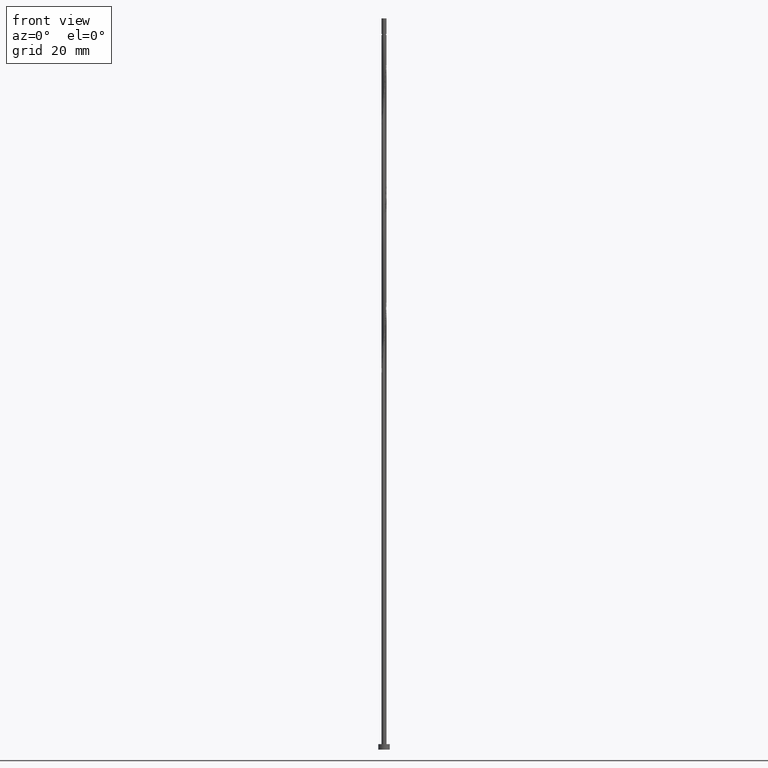
[diagram: clean part render]
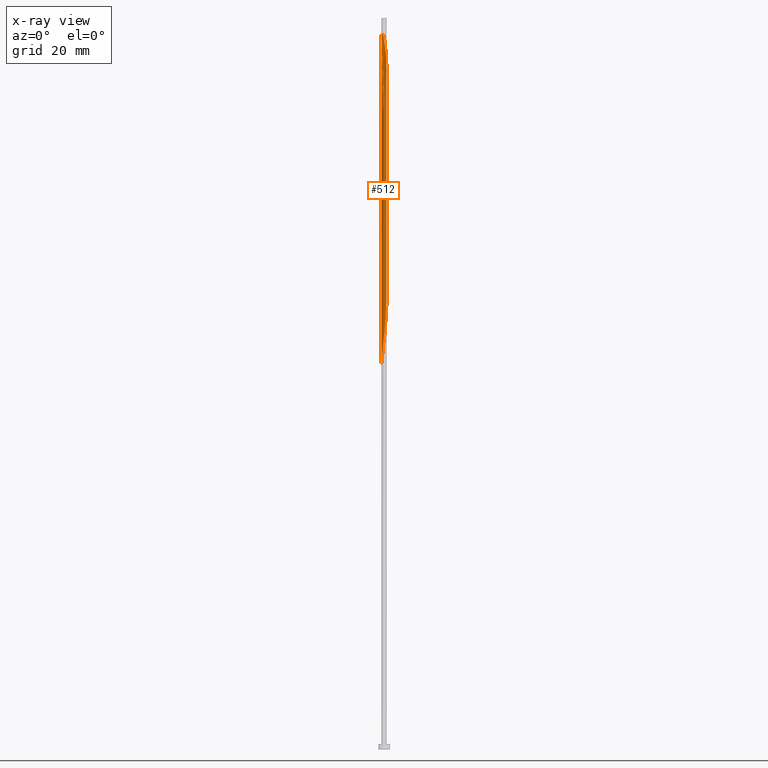
[diagram: x-ray — body ghosted, one internal face saturated and labeled with its STEP entity id]
A machine part, front view, then the same camera in x-ray: the body is ghosted and one INTERNAL B-rep face — a face not visible from any outside direction — is saturated and labeled: STEP entity #512.
In plain terms, the highlighted cylindrical surface (bore or boss wall) has radius 0.55 mm, axis along (-0, -0, -1).
Its self-contained STEP definition (entity closure, byte-faithful):
#14 = LINE ( 'NONE', #472, #1499 ) ;
#16 = CARTESIAN_POINT ( 'NONE',  ( -0.1256294538510286662, 0.5412675679983837140, 104.8434024322723417 ) ) ;
#27 = CARTESIAN_POINT ( 'NONE',  ( 0.3834794372333126811, -0.3942632638469158457, 145.4494630383329650 ) ) ;
#35 = CARTESIAN_POINT ( 'NONE',  ( 0.5500000000000003775, 0.06299091006181967156, 124.3606350463627592 ) ) ;
#45 = CARTESIAN_POINT ( 'NONE',  ( 0.03195211761843825410, -0.5547363355878992541, 142.4191600080298770 ) ) ;
#51 = CARTESIAN_POINT ( 'NONE',  ( 0.3834794372333126256, 0.3942632638469160122, 127.2676448565147780 ) ) ;
#58 = CARTESIAN_POINT ( 'NONE',  ( 0.1094486180817289128, -0.5390000000000008118, 143.0252206140905855 ) ) ;
#63 = CARTESIAN_POINT ( 'NONE',  ( 0.4401659366941122475, 0.3391272445793576673, 126.6615842504541831 ) ) ;
#74 = CARTESIAN_POINT ( 'NONE',  ( 0.3267929377725130036, 0.4493992831144738020, 101.2070387959087157 ) ) ;
#75 = CARTESIAN_POINT ( 'NONE',  ( -0.4913325304805729044, 0.2595104705659283528, 135.1464327353026249 ) ) ;
#78 = CARTESIAN_POINT ( 'NONE',  ( 0.000000000000000000, 0.000000000000000000, 156.3585539474238715 ) ) ;
#89 = CARTESIAN_POINT ( 'NONE',  ( -0.5357582445995460185, -0.1243507271535392728, 111.5100690989390415 ) ) ;
#96 = CARTESIAN_POINT ( 'NONE',  ( 0.4401659366941122475, 0.3391272445793576673, 99.99491758378749751 ) ) ;
#104 = EDGE_CURVE ( 'NONE', #1370, #420, #14, .T. ) ;
#105 = CARTESIAN_POINT ( 'NONE',  ( 0.5178793091923759029, 0.2013811335558033377, 98.78279637166627936 ) ) ;
#106 = CARTESIAN_POINT ( 'NONE',  ( -0.3983175623046791292, 0.3874228431590614474, 133.9343115231814068 ) ) ;
#116 = CARTESIAN_POINT ( 'NONE',  ( -0.5445426591040019026, 0.1105741030157384452, 109.6918872807572143 ) ) ;
#128 = CARTESIAN_POINT ( 'NONE',  ( 0.3983175623046792957, -0.3874228431590612809, 120.6009781898480924 ) ) ;
#132 = LINE ( 'NONE', #224, #1389 ) ;
#146 = CARTESIAN_POINT ( 'NONE',  ( -0.2568690281587663882, -0.4863314737632881135, 88.47976606863602456 ) ) ;
#147 = CARTESIAN_POINT ( 'NONE',  ( -0.1256294538510286940, -0.5412675679983839361, 141.2070387959088009 ) ) ;
#170 = CARTESIAN_POINT ( 'NONE',  ( 0.2730332741166158761, 0.4839485210918138547, 153.3282509171208403 ) ) ;
#176 = CARTESIAN_POINT ( 'NONE',  ( -0.3356754182106476136, -0.4356856821254375678, 139.3888569777269311 ) ) ;
#200 = CARTESIAN_POINT ( 'NONE',  ( -0.1993313639838222295, 0.5126080445450987844, 132.1161297049996506 ) ) ;
#203 = CARTESIAN_POINT ( 'NONE',  ( -0.3834794372333127366, -0.3942632638469158457, 113.9343115231814636 ) ) ;
#208 = CARTESIAN_POINT ( 'NONE',  ( -0.5499999999999929390, 0.000000000000000000, 156.3585539474238715 ) ) ;
#220 = CARTESIAN_POINT ( 'NONE',  ( -0.2568690281587663882, -0.4863314737632881135, 115.1464327353026675 ) ) ;
#224 = CARTESIAN_POINT ( 'NONE',  ( -0.5500000000000000444, 0.000000000000000000, 160.0000000000000284 ) ) ;
#236 = CARTESIAN_POINT ( 'NONE',  ( -0.5500000000000010436, -2.374395286679931804E-16, 135.5090994681229972 ) ) ;
#263 =( BOUNDED_CURVE ( )  B_SPLINE_CURVE ( 2, ( #1400, #1378, #1385, #308, #319, #1045, #1520, #128, #296, #777, #999, #548, #1510, #558, #545, #1413, #220, #797, #203, #696, #1533, #1165, #89, #554, #452, #116, #1452, #619, #583, #1070, #1542, #1079, #360, #16, #845, #804, #898, #687, #1289, #74, #905, #96, #812, #105, #572, #303, #1151, #1273, #426, #310, #1498, #419, #1279, #552, #664, #1159, #1504, #1040, #914, #1395, #146, #1318, #1029, #270, #746, #624, #983, #387, #1300 ),
 .UNSPECIFIED., .F., .T. ) 
 B_SPLINE_CURVE_WITH_KNOTS ( ( 3, 2, 2, 2, 2, 2, 2, 2, 2, 2, 2, 2, 2, 2, 2, 2, 2, 2, 2, 2, 2, 2, 2, 2, 2, 2, 2, 2, 2, 2, 2, 2, 2, 2, 3 ),
 ( 0.5545252162417508845, 0.5568181818181817677, 0.5681818181818182323, 0.5795454545454545858, 0.5909090909090909394, 0.6022727272727272929, 0.6136363636363636465, 0.6250000000000000000, 0.6363636363636363535, 0.6477272727272727071, 0.6590909090909090606, 0.6704545454545454142, 0.6818181818181817677, 0.6931818181818182323, 0.7045454545454545858, 0.7159090909090909394, 0.7272727272727272929, 0.7386363636363636465, 0.7500000000000000000, 0.7613636363636363535, 0.7727272727272727071, 0.7840909090909090606, 0.7954545454545454142, 0.8068181818181817677, 0.8181818181818182323, 0.8295454545454545858, 0.8409090909090909394, 0.8522727272727272929, 0.8636363636363636465, 0.8750000000000000000, 0.8863636363636363535, 0.8977272727272727071, 0.9090909090909090606, 0.9204545454545454142, 0.9295252162417512176 ),
 .UNSPECIFIED. ) 
 CURVE ( )  GEOMETRIC_REPRESENTATION_ITEM ( )  RATIONAL_B_SPLINE_CURVE ( ( 0.9061101570136069761, 0.9072237824201893064, 0.9090909090909671253, 0.8998376744372691416, 0.9090909090909671253, 0.8998376744372691416, 0.9090909090909671253, 0.8998376744372691416, 0.9090909090909671253, 0.8998376744372691416, 0.9090909090909671253, 0.8998376744372691416, 0.9090909090909671253, 0.8998376744372691416, 0.9090909090909671253, 0.8998376744372691416, 0.9090909090909671253, 0.8998376744372691416, 0.9090909090909671253, 0.8998376744372691416, 0.9090909090909671253, 0.8998376744372691416, 0.9090909090909671253, 0.8998376744372691416, 0.9090909090909671253, 0.8998376744372691416, 0.9090909090909671253, 0.8998376744372691416, 0.9090909090909671253, 0.8998376744372691416, 0.9090909090909671253, 0.8998376744372691416, 0.9090909090909671253, 0.8998376744372691416, 0.9090909090909671253, 0.8998376744372691416, 0.9090909090909671253, 0.8998376744372691416, 0.9090909090909671253, 0.8998376744372691416, 0.9090909090909671253, 0.8998376744372691416, 0.9090909090909671253, 0.8998376744372691416, 0.9090909090909671253, 0.8998376744372691416, 0.9090909090909671253, 0.8998376744372691416, 0.9090909090909671253, 0.8998376744372691416, 0.9090909090909671253, 0.8998376744372691416, 0.9090909090909671253, 0.8998376744372691416, 0.9090909090909671253, 0.8998376744372691416, 0.9090909090909671253, 0.8998376744372691416, 0.9090909090909671253, 0.8998376744372691416, 0.9090909090909671253, 0.8998376744372691416, 0.9090909090909671253, 0.8998376744372691416, 0.9090909090909671253, 0.8998376744372691416, 0.9090909090909671253, 0.9017048011080467385, 0.9061101570136073091 ) ) 
 REPRESENTATION_ITEM ( '' )  );
#267 = EDGE_CURVE ( 'NONE', #1344, #1274, #883, .T. ) ;
#270 = CARTESIAN_POINT ( 'NONE',  ( -0.4401659366941124141, -0.3391272445793575563, 86.66158425045416891 ) ) ;
#271 = CARTESIAN_POINT ( 'NONE',  ( 0.4401659366941123586, -0.3391272445793577228, 146.0555236443935598 ) ) ;
#276 = CARTESIAN_POINT ( 'NONE',  ( 0.5536371800067164672, -0.04732032075127501347, 148.4797660686360530 ) ) ;
#293 = CARTESIAN_POINT ( 'NONE',  ( 0.5178793091923760139, -0.2013811335558035875, 147.2676448565148064 ) ) ;
#296 = CARTESIAN_POINT ( 'NONE',  ( 0.3356754182106475581, -0.4356856821254377343, 119.9949175837875259 ) ) ;
#303 = CARTESIAN_POINT ( 'NONE',  ( 0.5536371800067162452, 0.04732032075127478449, 97.57067515954510384 ) ) ;
#308 = CARTESIAN_POINT ( 'NONE',  ( 0.5445426591040019026, -0.1105741030157385285, 123.0252206140905287 ) ) ;
#310 = CARTESIAN_POINT ( 'NONE',  ( 0.4913325304805729044, -0.2595104705659283528, 95.14643273530268175 ) ) ;
#312 = AXIS2_PLACEMENT_3D ( 'NONE', #1263, #1502, #423 ) ;
#315 = CARTESIAN_POINT ( 'NONE',  ( -0.5500000000000009326, 2.991364140699127979E-16, 137.2080084267247457 ) ) ;
#319 = CARTESIAN_POINT ( 'NONE',  ( 0.5179375947922877366, -0.1850422867908333990, 122.4191600080299338 ) ) ;
#324 = LINE ( 'NONE', #667, #1327 ) ;
#329 = ORIENTED_EDGE ( 'NONE', *, *, #267, .F. ) ;
#337 = CARTESIAN_POINT ( 'NONE',  ( -0.5490899195553592405, 0.03162689113223179915, 136.9646145534844663 ) ) ;
#360 = CARTESIAN_POINT ( 'NONE',  ( -0.1993313639838222295, 0.5126080445450987844, 105.4494630383329934 ) ) ;
#387 = CARTESIAN_POINT ( 'NONE',  ( -0.5500000000000008216, -0.06299091006181758989, 84.36063504636271659 ) ) ;
#394 = CARTESIAN_POINT ( 'NONE',  ( 0.04683866811629528587, 0.5480019517931417061, 155.1464327353027102 ) ) ;
#408 = CARTESIAN_POINT ( 'NONE',  ( 0.3983175623046794622, 0.3874228431590613364, 152.1161297049996506 ) ) ;
#414 = DIRECTION ( 'NONE',  ( -0.000000000000000000, -0.000000000000000000, -1.000000000000000000 ) ) ;
#419 = CARTESIAN_POINT ( 'NONE',  ( 0.3983175623046792957, -0.3874228431590612809, 93.93431152318144939 ) ) ;
#420 = VERTEX_POINT ( 'NONE', #1522 ) ;
#423 = DIRECTION ( 'NONE',  ( -1.000000000000000000, 0.000000000000000000, 0.000000000000000000 ) ) ;
#426 = CARTESIAN_POINT ( 'NONE',  ( 0.5179375947922877366, -0.1850422867908333990, 95.75249334136323398 ) ) ;
#452 = CARTESIAN_POINT ( 'NONE',  ( -0.5490899195553592405, 0.03162689113223179915, 110.2979478868178234 ) ) ;
#457 = DIRECTION ( 'NONE',  ( -0.000000000000000000, -0.000000000000000000, -1.000000000000000000 ) ) ;
#472 = CARTESIAN_POINT ( 'NONE',  ( 0.5500000000000000444, 6.735557395310442516E-17, 160.0000000000000284 ) ) ;
#474 = ORIENTED_EDGE ( 'NONE', *, *, #1253, .F. ) ;
#482 = EDGE_CURVE ( 'NONE', #676, #1274, #713, .T. ) ;
#495 = CARTESIAN_POINT ( 'NONE',  ( 0.5179375947922879586, 0.1850422867908331770, 150.2979478868178376 ) ) ;
#505 = CARTESIAN_POINT ( 'NONE',  ( -0.1993313639838223683, -0.5126080445450988954, 140.6009781898481208 ) ) ;
#512 = ADVANCED_FACE ( 'NONE', ( #902 ), #542, .T. ) ;
#515 = CARTESIAN_POINT ( 'NONE',  ( -0.2730332741166160426, -0.4839485210918138547, 139.9949175837875259 ) ) ;
#522 = CARTESIAN_POINT ( 'NONE',  ( 0.3267929377725131701, -0.4493992831144739686, 144.8434024322723701 ) ) ;
#528 = CARTESIAN_POINT ( 'NONE',  ( 0.5178793091923759029, 0.2013811335558033377, 125.4494630383329650 ) ) ;
#542 = CYLINDRICAL_SURFACE ( 'NONE', #312, 0.5500000000000000444 ) ;
#544 = VERTEX_POINT ( 'NONE', #653 ) ;
#545 = CARTESIAN_POINT ( 'NONE',  ( -0.1094486180817290932, -0.5390000000000005898, 116.3585539474238857 ) ) ;
#548 = CARTESIAN_POINT ( 'NONE',  ( 0.1256294538510287218, -0.5412675679983836030, 118.1767357656056703 ) ) ;
#552 = CARTESIAN_POINT ( 'NONE',  ( 0.2730332741166158206, -0.4839485210918137992, 92.72219031106021703 ) ) ;
#554 = CARTESIAN_POINT ( 'NONE',  ( -0.5536371800067160232, -0.04732032075127497184, 110.9040084928783756 ) ) ;
#558 = CARTESIAN_POINT ( 'NONE',  ( -0.03195211761843840675, -0.5547363355878990321, 116.9646145534844663 ) ) ;
#562 = ORIENTED_EDGE ( 'NONE', *, *, #1375, .T. ) ;
#572 = CARTESIAN_POINT ( 'NONE',  ( 0.5357582445995461295, 0.1243507271535390785, 98.17673576560569870 ) ) ;
#575 =( BOUNDED_CURVE ( )  B_SPLINE_CURVE ( 2, ( #315, #1302, #337, #1514, #794, #75, #1058, #106, #1403, #1530, #200, #674, #702, #1262, #652, #1248, #893, #1140, #51, #63, #1237, #528, #747, #35, #1231 ),
 .UNSPECIFIED., .F., .T. ) 
 B_SPLINE_CURVE_WITH_KNOTS ( ( 3, 2, 2, 2, 2, 2, 2, 2, 2, 2, 2, 2, 3 ),
 ( 0.4295252162417513286, 0.4318181818181818232, 0.4431818181818181768, 0.4545454545454545303, 0.4659090909090908839, 0.4772727272727272929, 0.4886363636363636465, 0.5000000000000000000, 0.5113636363636363535, 0.5227272727272727071, 0.5340909090909090606, 0.5454545454545454142, 0.5545252162417508845 ),
 .UNSPECIFIED. ) 
 CURVE ( )  GEOMETRIC_REPRESENTATION_ITEM ( )  RATIONAL_B_SPLINE_CURVE ( ( 0.9061101570136074201, 0.9072237824201896395, 0.9090909090909671253, 0.8998376744372691416, 0.9090909090909671253, 0.8998376744372691416, 0.9090909090909671253, 0.8998376744372691416, 0.9090909090909671253, 0.8998376744372691416, 0.9090909090909671253, 0.8998376744372691416, 0.9090909090909671253, 0.8998376744372691416, 0.9090909090909671253, 0.8998376744372691416, 0.9090909090909671253, 0.8998376744372691416, 0.9090909090909671253, 0.8998376744372691416, 0.9090909090909671253, 0.8998376744372691416, 0.9090909090909671253, 0.9017048011080469605, 0.9061101570136069761 ) ) 
 REPRESENTATION_ITEM ( '' )  );
#583 = CARTESIAN_POINT ( 'NONE',  ( -0.4448250463926261555, 0.3234666568624949279, 107.8737054625753728 ) ) ;
#591 = ORIENTED_EDGE ( 'NONE', *, *, #104, .F. ) ;
#619 = CARTESIAN_POINT ( 'NONE',  ( -0.4913325304805729044, 0.2595104705659283528, 108.4797660686360103 ) ) ;
#624 = CARTESIAN_POINT ( 'NONE',  ( -0.5178793091923757919, -0.2013811335558036708, 85.44946303833295076 ) ) ;
#631 = CARTESIAN_POINT ( 'NONE',  ( -0.04683866811629521648, -0.5480019517931417061, 141.8130994019693389 ) ) ;
#644 = CARTESIAN_POINT ( 'NONE',  ( -0.5445426591040022357, -0.1105741030157383759, 136.3585539474238999 ) ) ;
#652 = CARTESIAN_POINT ( 'NONE',  ( 0.1094486180817291210, 0.5390000000000005898, 129.6918872807572143 ) ) ;
#653 = CARTESIAN_POINT ( 'NONE',  ( -0.5500000000000009326, 2.991364140699127979E-16, 137.2080084267247457 ) ) ;
#664 = CARTESIAN_POINT ( 'NONE',  ( 0.1993313639838222295, -0.5126080445450987844, 92.11612970499965058 ) ) ;
#667 = CARTESIAN_POINT ( 'NONE',  ( -0.5500000000000000444, 0.000000000000000000, 160.0000000000000284 ) ) ;
#674 = CARTESIAN_POINT ( 'NONE',  ( -0.1256294538510286662, 0.5412675679983837140, 131.5100690989390273 ) ) ;
#676 = VERTEX_POINT ( 'NONE', #208 ) ;
#687 = CARTESIAN_POINT ( 'NONE',  ( 0.1869451185450198283, 0.5232636644121023695, 102.4191600080299338 ) ) ;
#696 = CARTESIAN_POINT ( 'NONE',  ( -0.4401659366941124141, -0.3391272445793575563, 113.3282509171208119 ) ) ;
#702 = CARTESIAN_POINT ( 'NONE',  ( -0.04683866811629520260, 0.5480019517931414841, 130.9040084928784324 ) ) ;
#710 = CARTESIAN_POINT ( 'NONE',  ( -0.5500000000000009326, -0.01582653958810254988, 135.6311974728412508 ) ) ;
#713 = CIRCLE ( 'NONE', #1296, 0.5499999999999929390 ) ;
#746 = CARTESIAN_POINT ( 'NONE',  ( -0.4790226229432440475, -0.2702541890675806413, 86.05552364439358826 ) ) ;
#747 = CARTESIAN_POINT ( 'NONE',  ( 0.5357582445995461295, 0.1243507271535390785, 124.8434024322723559 ) ) ;
#755 = CARTESIAN_POINT ( 'NONE',  ( -0.1094486180817433457, 0.5390000000001451408, 156.3585539474238146 ) ) ;
#763 = CARTESIAN_POINT ( 'NONE',  ( -0.3983175623046793512, -0.3874228431590615029, 138.7827963716662794 ) ) ;
#768 = CARTESIAN_POINT ( 'NONE',  ( 0.5357582445995461295, -0.1243507271535393283, 147.8737054625754297 ) ) ;
#774 = CARTESIAN_POINT ( 'NONE',  ( 0.4790226229432441585, -0.2702541890675808633, 146.6615842504541831 ) ) ;
#777 = CARTESIAN_POINT ( 'NONE',  ( 0.2730332741166158206, -0.4839485210918137992, 119.3888569777269026 ) ) ;
#784 = ORIENTED_EDGE ( 'NONE', *, *, #482, .T. ) ;
#794 = CARTESIAN_POINT ( 'NONE',  ( -0.5179375947922877366, 0.1850422867908333435, 135.7524933413633050 ) ) ;
#797 = CARTESIAN_POINT ( 'NONE',  ( -0.3267929377725129481, -0.4493992831144739686, 114.5403721292420443 ) ) ;
#804 = CARTESIAN_POINT ( 'NONE',  ( 0.03195211761843826104, 0.5547363355878989211, 103.6312812201511093 ) ) ;
#807 = DIRECTION ( 'NONE',  ( -0.000000000000000000, -0.000000000000000000, -1.000000000000000000 ) ) ;
#812 = CARTESIAN_POINT ( 'NONE',  ( 0.4790226229432440475, 0.2702541890675808078, 99.38885697772691685 ) ) ;
#815 = EDGE_CURVE ( 'NONE', #676, #544, #324, .T. ) ;
#845 = CARTESIAN_POINT ( 'NONE',  ( -0.04683866811629520260, 0.5480019517931414841, 104.2373418262117468 ) ) ;
#878 = CARTESIAN_POINT ( 'NONE',  ( 0.4913325304805731819, 0.2595104705659281308, 150.9040084928784040 ) ) ;
#883 =( BOUNDED_CURVE ( )  B_SPLINE_CURVE ( 2, ( #236, #710, #1199, #644, #1239, #1257, #1131, #763, #176, #515, #505, #147, #631, #45, #58, #1109, #1464, #522, #27, #271, #774, #293, #768, #276, #1009, #1002, #495, #878, #1484, #408, #1250, #170, #991, #984, #394, #1472, #755 ),
 .UNSPECIFIED., .F., .T. ) 
 B_SPLINE_CURVE_WITH_KNOTS ( ( 3, 2, 2, 2, 2, 2, 2, 2, 2, 2, 2, 2, 2, 2, 2, 2, 2, 2, 3 ),
 ( 0.5545252162417513286, 0.5568181818181818787, 0.5681818181818181213, 0.5795454545454545858, 0.5909090909090907173, 0.6022727272727271819, 0.6136363636363635354, 0.6249999999999998890, 0.6363636363636362425, 0.6477272727272725961, 0.6590909090909089496, 0.6704545454545451921, 0.6818181818181816567, 0.6931818181818178992, 0.7045454545454543638, 0.7159090909090906063, 0.7272727272727270709, 0.7386363636363633134, 0.7499999999999996669 ),
 .UNSPECIFIED. ) 
 CURVE ( )  GEOMETRIC_REPRESENTATION_ITEM ( )  RATIONAL_B_SPLINE_CURVE ( ( 0.9061101570136075312, 0.9072237824201897505, 0.9090909090909674584, 0.8998376744372692526, 0.9090909090909674584, 0.8998376744372692526, 0.9090909090909674584, 0.8998376744372692526, 0.9090909090909674584, 0.8998376744372692526, 0.9090909090909674584, 0.8998376744372692526, 0.9090909090909674584, 0.8998376744372692526, 0.9090909090909674584, 0.8998376744372692526, 0.9090909090909674584, 0.8998376744372692526, 0.9090909090909674584, 0.8998376744372692526, 0.9090909090909674584, 0.8998376744372692526, 0.9090909090909674584, 0.8998376744372692526, 0.9090909090909674584, 0.8998376744372692526, 0.9090909090909674584, 0.8998376744372692526, 0.9090909090909674584, 0.8998376744372692526, 0.9090909090909674584, 0.8998376744372692526, 0.9090909090909674584, 0.8998376744372692526, 0.9090909090909674584, 0.8998376744372694747, 0.9090909090909672363 ) ) 
 REPRESENTATION_ITEM ( '' )  );
#888 = CARTESIAN_POINT ( 'NONE',  ( -0.5500000000000009326, -4.674006469842387406E-16, 83.87467509339143135 ) ) ;
#893 = CARTESIAN_POINT ( 'NONE',  ( 0.2568690281587664992, 0.4863314737632881135, 128.4797660686359677 ) ) ;
#898 = CARTESIAN_POINT ( 'NONE',  ( 0.1094486180817291210, 0.5390000000000005898, 103.0252206140905713 ) ) ;
#901 = CARTESIAN_POINT ( 'NONE',  ( -0.1094486180817433596, 0.5390000000001451408, 156.3585539474238146 ) ) ;
#902 = FACE_OUTER_BOUND ( 'NONE', #1035, .T. ) ;
#905 = CARTESIAN_POINT ( 'NONE',  ( 0.3834794372333126256, 0.3942632638469160122, 100.6009781898481350 ) ) ;
#914 = CARTESIAN_POINT ( 'NONE',  ( -0.1094486180817290932, -0.5390000000000005898, 89.69188728075721428 ) ) ;
#975 = ORIENTED_EDGE ( 'NONE', *, *, #104, .T. ) ;
#983 = CARTESIAN_POINT ( 'NONE',  ( -0.5357582445995460185, -0.1243507271535392728, 84.84340243227234168 ) ) ;
#984 = CARTESIAN_POINT ( 'NONE',  ( 0.1256294538510287495, 0.5412675679983838251, 154.5403721292420585 ) ) ;
#991 = CARTESIAN_POINT ( 'NONE',  ( 0.1993313639838222018, 0.5126080445450988954, 153.9343115231814068 ) ) ;
#999 = CARTESIAN_POINT ( 'NONE',  ( 0.1993313639838222295, -0.5126080445450987844, 118.7827963716663362 ) ) ;
#1002 = CARTESIAN_POINT ( 'NONE',  ( 0.5445426591040022357, 0.1105741030157383065, 149.6918872807572143 ) ) ;
#1009 = CARTESIAN_POINT ( 'NONE',  ( 0.5490899195553593515, 0.03162689113223167425, 149.0858266746967047 ) ) ;
#1029 = CARTESIAN_POINT ( 'NONE',  ( -0.3834794372333127366, -0.3942632638469158457, 87.26764485651477798 ) ) ;
#1035 = EDGE_LOOP ( 'NONE', ( #1105, #784, #329, #562, #1087, #591, #975, #474 ) ) ;
#1040 = CARTESIAN_POINT ( 'NONE',  ( -0.03195211761843840675, -0.5547363355878990321, 90.29794788681782336 ) ) ;
#1045 = CARTESIAN_POINT ( 'NONE',  ( 0.4913325304805729044, -0.2595104705659283528, 121.8130994019693389 ) ) ;
#1058 = CARTESIAN_POINT ( 'NONE',  ( -0.4448250463926261555, 0.3234666568624949279, 134.5403721292420585 ) ) ;
#1070 = CARTESIAN_POINT ( 'NONE',  ( -0.3983175623046791292, 0.3874228431590614474, 107.2676448565147780 ) ) ;
#1079 = CARTESIAN_POINT ( 'NONE',  ( -0.2730332741166158761, 0.4839485210918136326, 106.0555236443935740 ) ) ;
#1087 = ORIENTED_EDGE ( 'NONE', *, *, #1341, .F. ) ;
#1105 = ORIENTED_EDGE ( 'NONE', *, *, #815, .F. ) ;
#1109 = CARTESIAN_POINT ( 'NONE',  ( 0.1869451185450196895, -0.5232636644121025915, 143.6312812201511804 ) ) ;
#1131 = CARTESIAN_POINT ( 'NONE',  ( -0.4448250463926262110, -0.3234666568624949279, 138.1767357656056845 ) ) ;
#1140 = CARTESIAN_POINT ( 'NONE',  ( 0.3267929377725130036, 0.4493992831144738020, 127.8737054625753728 ) ) ;
#1149 = DIRECTION ( 'NONE',  ( -1.000000000000000000, 0.000000000000000000, 0.000000000000000000 ) ) ;
#1151 = CARTESIAN_POINT ( 'NONE',  ( 0.5490899195553592405, -0.03162689113223188242, 96.96461455348450897 ) ) ;
#1159 = CARTESIAN_POINT ( 'NONE',  ( 0.1256294538510287218, -0.5412675679983836030, 91.51006909893901309 ) ) ;
#1165 = CARTESIAN_POINT ( 'NONE',  ( -0.5178793091923757919, -0.2013811335558036708, 112.1161297049996080 ) ) ;
#1173 = CARTESIAN_POINT ( 'NONE',  ( 0.5500000000000000444, 6.735557395310442516E-17, 156.3585539474238715 ) ) ;
#1199 = CARTESIAN_POINT ( 'NONE',  ( -0.5490899195553593515, -0.03162689113223173670, 135.7524933413633335 ) ) ;
#1205 = VERTEX_POINT ( 'NONE', #888 ) ;
#1231 = CARTESIAN_POINT ( 'NONE',  ( 0.5500000000000009326, 3.458764787683366326E-16, 123.8746750933914313 ) ) ;
#1237 = CARTESIAN_POINT ( 'NONE',  ( 0.4790226229432440475, 0.2702541890675808078, 126.0555236443935740 ) ) ;
#1239 = CARTESIAN_POINT ( 'NONE',  ( -0.5179375947922879586, -0.1850422867908333158, 136.9646145534844948 ) ) ;
#1248 = CARTESIAN_POINT ( 'NONE',  ( 0.1869451185450198283, 0.5232636644121023695, 129.0858266746965626 ) ) ;
#1250 = CARTESIAN_POINT ( 'NONE',  ( 0.3356754182106473916, 0.4356856821254376233, 152.7221903110602170 ) ) ;
#1253 = EDGE_CURVE ( 'NONE', #544, #420, #575, .T. ) ;
#1257 = CARTESIAN_POINT ( 'NONE',  ( -0.4913325304805731264, -0.2595104705659282973, 137.5706751595450896 ) ) ;
#1262 = CARTESIAN_POINT ( 'NONE',  ( 0.03195211761843826104, 0.5547363355878989211, 130.2979478868177807 ) ) ;
#1263 = CARTESIAN_POINT ( 'NONE',  ( 0.000000000000000000, 0.000000000000000000, 160.0000000000000284 ) ) ;
#1273 = CARTESIAN_POINT ( 'NONE',  ( 0.5445426591040019026, -0.1105741030157385285, 96.35855394742384306 ) ) ;
#1274 = VERTEX_POINT ( 'NONE', #901 ) ;
#1279 = CARTESIAN_POINT ( 'NONE',  ( 0.3356754182106475581, -0.4356856821254377343, 93.32825091712085452 ) ) ;
#1289 = CARTESIAN_POINT ( 'NONE',  ( 0.2568690281587664992, 0.4863314737632881135, 101.8130994019693532 ) ) ;
#1296 = AXIS2_PLACEMENT_3D ( 'NONE', #78, #414, #1149 ) ;
#1300 = CARTESIAN_POINT ( 'NONE',  ( -0.5500000000000009326, -4.674006469842387406E-16, 83.87467509339141714 ) ) ;
#1302 = CARTESIAN_POINT ( 'NONE',  ( -0.5500000000000008216, 0.01582653958810284131, 137.0859104220065205 ) ) ;
#1318 = CARTESIAN_POINT ( 'NONE',  ( -0.3267929377725129481, -0.4493992831144739686, 87.87370546257538706 ) ) ;
#1327 = VECTOR ( 'NONE', #807, 1000.000000000000000 ) ;
#1341 = EDGE_CURVE ( 'NONE', #420, #1205, #263, .T. ) ;
#1344 = VERTEX_POINT ( 'NONE', #1427 ) ;
#1370 = VERTEX_POINT ( 'NONE', #1173 ) ;
#1375 = EDGE_CURVE ( 'NONE', #1344, #1205, #132, .T. ) ;
#1378 = CARTESIAN_POINT ( 'NONE',  ( 0.5500000000000010436, -0.01582653958810026351, 123.7525770886732346 ) ) ;
#1385 = CARTESIAN_POINT ( 'NONE',  ( 0.5490899195553592405, -0.03162689113223188242, 123.6312812201511377 ) ) ;
#1389 = VECTOR ( 'NONE', #457, 1000.000000000000000 ) ;
#1395 = CARTESIAN_POINT ( 'NONE',  ( -0.1869451185450197450, -0.5232636644121023695, 89.08582667469656258 ) ) ;
#1400 = CARTESIAN_POINT ( 'NONE',  ( 0.5500000000000009326, 3.458764787683366326E-16, 123.8746750933914313 ) ) ;
#1403 = CARTESIAN_POINT ( 'NONE',  ( -0.3356754182106476692, 0.4356856821254377343, 133.3282509171208403 ) ) ;
#1413 = CARTESIAN_POINT ( 'NONE',  ( -0.1869451185450197450, -0.5232636644121023695, 115.7524933413632482 ) ) ;
#1427 = CARTESIAN_POINT ( 'NONE',  ( -0.5500000000000010436, -2.374395286679931804E-16, 135.5090994681229972 ) ) ;
#1430 = DIRECTION ( 'NONE',  ( -0.000000000000000000, -0.000000000000000000, -1.000000000000000000 ) ) ;
#1452 = CARTESIAN_POINT ( 'NONE',  ( -0.5179375947922877366, 0.1850422867908333435, 109.0858266746965910 ) ) ;
#1464 = CARTESIAN_POINT ( 'NONE',  ( 0.2568690281587662771, -0.4863314737632883356, 144.2373418262117752 ) ) ;
#1472 = CARTESIAN_POINT ( 'NONE',  ( -0.03195211761843583936, 0.5547363355878991431, 155.7524933413632766 ) ) ;
#1484 = CARTESIAN_POINT ( 'NONE',  ( 0.4448250463926262666, 0.3234666568624947058, 151.5100690989390557 ) ) ;
#1498 = CARTESIAN_POINT ( 'NONE',  ( 0.4448250463926261555, -0.3234666568624949279, 94.54037212924205846 ) ) ;
#1499 = VECTOR ( 'NONE', #1430, 1000.000000000000000 ) ;
#1502 = DIRECTION ( 'NONE',  ( -0.000000000000000000, -0.000000000000000000, -1.000000000000000000 ) ) ;
#1504 = CARTESIAN_POINT ( 'NONE',  ( 0.04683866811629504995, -0.5480019517931413731, 90.90400849287843243 ) ) ;
#1510 = CARTESIAN_POINT ( 'NONE',  ( 0.04683866811629504995, -0.5480019517931413731, 117.5706751595451038 ) ) ;
#1514 = CARTESIAN_POINT ( 'NONE',  ( -0.5445426591040019026, 0.1105741030157384452, 136.3585539474238715 ) ) ;
#1520 = CARTESIAN_POINT ( 'NONE',  ( 0.4448250463926261555, -0.3234666568624949279, 121.2070387959087157 ) ) ;
#1522 = CARTESIAN_POINT ( 'NONE',  ( 0.5500000000000009326, 3.458764787683366819E-16, 123.8746750933914313 ) ) ;
#1530 = CARTESIAN_POINT ( 'NONE',  ( -0.2730332741166158761, 0.4839485210918136326, 132.7221903110602454 ) ) ;
#1533 = CARTESIAN_POINT ( 'NONE',  ( -0.4790226229432440475, -0.2702541890675806413, 112.7221903110602312 ) ) ;
#1542 = CARTESIAN_POINT ( 'NONE',  ( -0.3356754182106476692, 0.4356856821254377343, 106.6615842504541689 ) ) ;